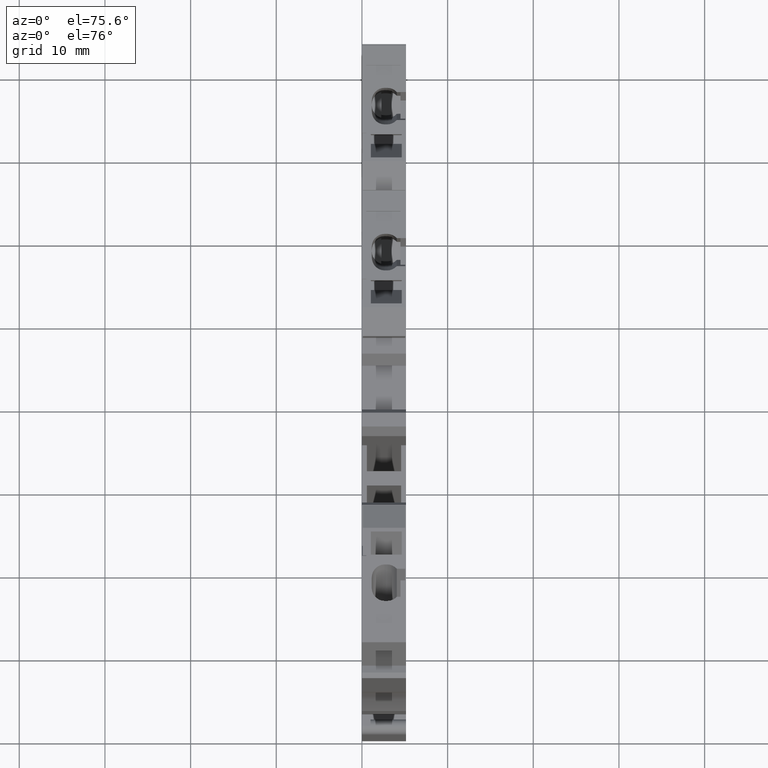
[diagram: clean part render]
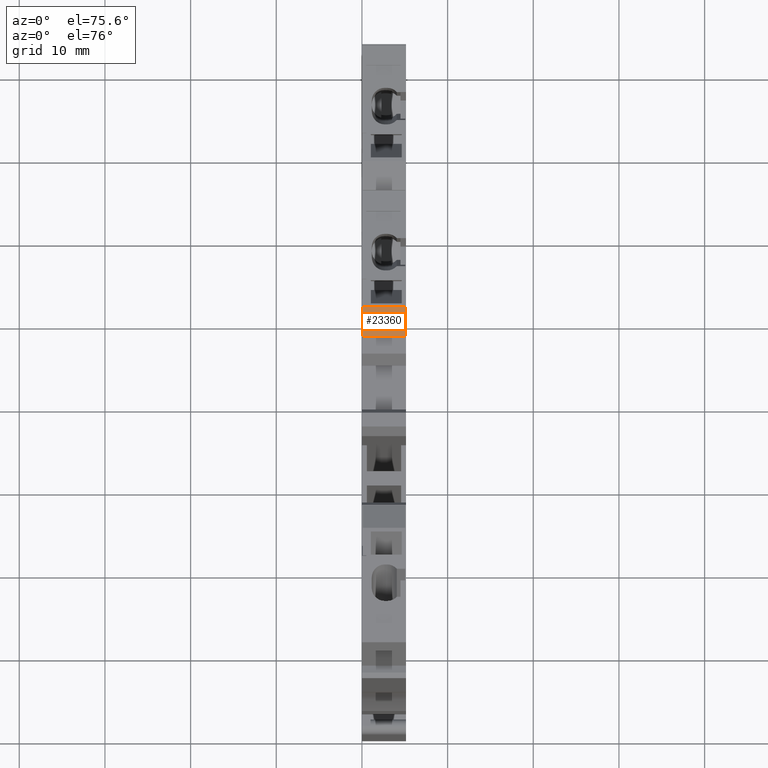
[diagram: same view with one face highlighted and labeled with its STEP entity id]
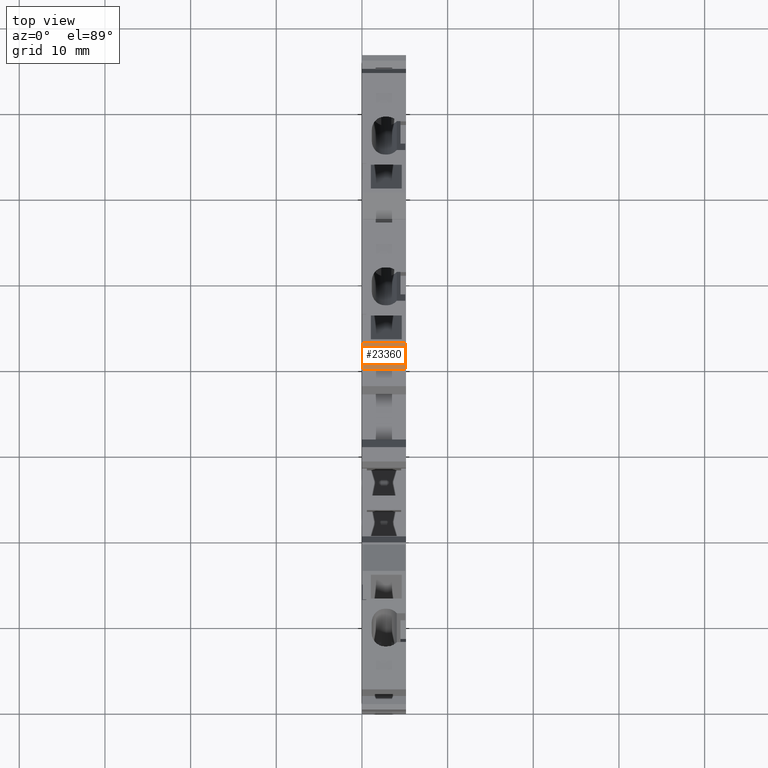
[diagram: same view with one face highlighted and labeled with its STEP entity id]
A machine part, auxiliary view. The second image highlights one B-rep face of the part: STEP entity #23360.
A second angle (top view) of the same face is appended — the face is thin or edge-on in the first view.
In plain terms, the highlighted planar face has unit normal (0, -0.4472, 0.8944).
Its self-contained STEP definition (entity closure, byte-faithful):
#15680=CARTESIAN_POINT('',(42.6037098817286,35.3880233453816,
-0.100000000071005));
#15690=VERTEX_POINT('',#15680);
#15840=CARTESIAN_POINT('',(42.6037098817293,35.3880233453832,
-5.05000000007101));
#15850=VERTEX_POINT('',#15840);
#15880=CARTESIAN_POINT('',(42.6037098817286,35.3880233453816,
-7.09790894051856E-11));
#15890=DIRECTION('',(-1.33406774891479E-13,-3.06050203357693E-13,1.));
#15900=VECTOR('',#15890,1.);
#15910=LINE('',#15880,#15900);
#15920=EDGE_CURVE('',#15850,#15690,#15910,.T.);
#22880=CARTESIAN_POINT('',(62.3733060747085,48.5055366876105,
-0.100000000071004));
#22890=DIRECTION('',(0.833258639104385,0.552883387666793,
4.03962154252382E-17));
#22900=VECTOR('',#22890,1.);
#22910=LINE('',#22880,#22900);
#22920=CARTESIAN_POINT('',(45.4917054695383,37.3042648449851,
-0.100000000071005));
#22930=VERTEX_POINT('',#22920);
#22940=EDGE_CURVE('',#15690,#22930,#22910,.T.);
#23130=CARTESIAN_POINT('',(42.6037098817294,35.3880233453834,
-5.96000240012035));
#23140=DIRECTION('',(-0.552883387666793,0.833258639104385,
1.8126058630775E-13));
#23150=DIRECTION('',(0.833258639104385,0.552883387666793,
2.80364169570416E-13));
#23160=AXIS2_PLACEMENT_3D('',#23130,#23140,#23150);
#23170=PLANE('',#23160);
#23180=ORIENTED_EDGE('',*,*,#15920,.T.);
#23190=CARTESIAN_POINT('',(62.3733060747083,48.5055366876115,
-5.05000000007101));
#23200=DIRECTION('',(0.833258639104385,0.552883387666793,
4.03962154252382E-17));
#23210=VECTOR('',#23200,1.);
#23220=LINE('',#23190,#23210);
#23230=CARTESIAN_POINT('',(45.4917054695363,37.3042648449849,
-5.05000000007101));
#23240=VERTEX_POINT('',#23230);
#23250=EDGE_CURVE('',#15850,#23240,#23220,.T.);
#23260=ORIENTED_EDGE('',*,*,#23250,.F.);
#23270=CARTESIAN_POINT('',(45.4917054695383,37.3042648449852,
-7.09789493957259E-11));
#23280=DIRECTION('',(-4.02466479067065E-13,-4.95121708015166E-14,-1.));
#23290=VECTOR('',#23280,1.);
#23300=LINE('',#23270,#23290);
#23310=EDGE_CURVE('',#22930,#23240,#23300,.T.);
#23320=ORIENTED_EDGE('',*,*,#23310,.T.);
#23330=ORIENTED_EDGE('',*,*,#22940,.T.);
#23340=EDGE_LOOP('',(#23330,#23320,#23260,#23180));
#23350=FACE_OUTER_BOUND('',#23340,.T.);
#23360=ADVANCED_FACE('',(#23350),#23170,.T.);